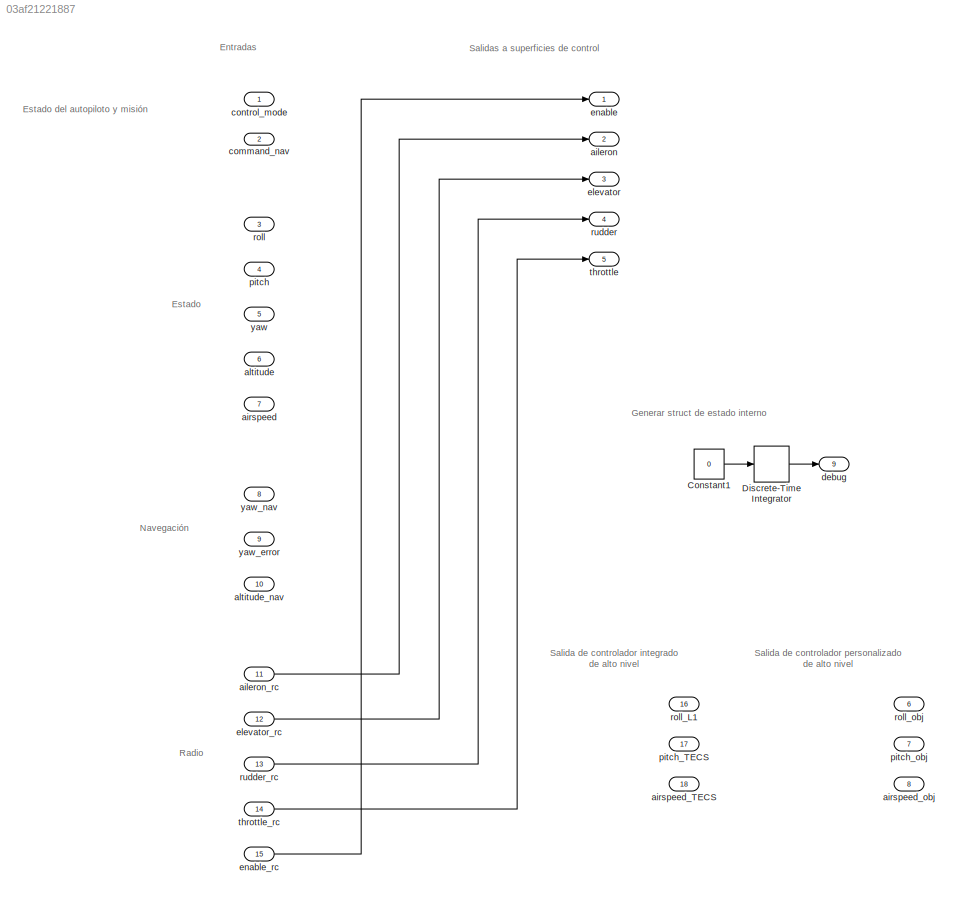
MODEL slx_03af21221887
KIND model
CONFIG AbsTol = auto
CONFIG EnableMultiTasking = off
CONFIG FixedStep = 1/100
CONFIG MaxStep = auto
CONFIG MinStep = auto
CONFIG RelTol = 1e-3
CONFIG SampleTimeConstraint = Unconstrained
CONFIG SolverName = FixedStepDiscrete
CONFIG StartTime = 0.0
CONFIG StopTime = inf
BLOCK [Constant] Constant1
  OutDataTypeStr = single
  Value = 0
BLOCK [DiscreteIntegrator] Discrete-Time Integrator
  ICPrevOutput = DiscIntNeverNeededParam
  ICPrevScaledInput = DiscIntNeverNeededParam
  InitialConditionSetting = Auto
  SampleTime = -1
BLOCK [Outport] aileron
  Port = 2
BLOCK [Inport] aileron_rc
  Port = 11
BLOCK [Inport] airspeed
  OutDataTypeStr = single
  Port = 7
BLOCK [Inport] airspeed_TECS
  Port = 18
BLOCK [Outport] airspeed_obj
  OutDataTypeStr = single
  Port = 8
BLOCK [Inport] altitude
  Port = 6
BLOCK [Inport] altitude_nav
  Port = 10
BLOCK [Inport] command_nav
  Port = 2
BLOCK [Inport] control_mode
  OutDataTypeStr = single
BLOCK [Outport] debug
  Port = 9
BLOCK [Outport] elevator
  Port = 3
BLOCK [Inport] elevator_rc
  Port = 12
BLOCK [Outport] enable
  OutDataTypeStr = boolean
BLOCK [Inport] enable_rc
  OutDataTypeStr = boolean
  Port = 15
BLOCK [Inport] pitch
  Port = 4
BLOCK [Inport] pitch_TECS
  Port = 17
BLOCK [Outport] pitch_obj
  Port = 7
BLOCK [Inport] roll
  Port = 3
BLOCK [Inport] roll_L1
  Port = 16
BLOCK [Outport] roll_obj
  Port = 6
BLOCK [Outport] rudder
  Port = 4
BLOCK [Inport] rudder_rc
  Port = 13
BLOCK [Outport] throttle
  OutDataTypeStr = single
  Port = 5
BLOCK [Inport] throttle_rc
  OutDataTypeStr = single
  Port = 14
BLOCK [Inport] yaw
  Port = 5
BLOCK [Inport] yaw_error
  Port = 9
BLOCK [Inport] yaw_nav
  Port = 8
ANNOTATION (root): Salidas a superficies de control
ANNOTATION (root): Salida de controlador integrado de alto nivel
ANNOTATION (root): Salida de controlador personalizado de alto nivel
ANNOTATION (root): Entradas
ANNOTATION (root): Estado
ANNOTATION (root): Estado del autopiloto y misión
ANNOTATION (root): Generar struct de estado interno
ANNOTATION (root): Navegación
ANNOTATION (root): Radio
LINE Constant1:1 -> Discrete-Time Integrator:1
LINE Discrete-Time Integrator:1 -> debug:1
LINE aileron_rc:1 -> aileron:1
LINE elevator_rc:1 -> elevator:1
LINE enable_rc:1 -> enable:1
LINE rudder_rc:1 -> rudder:1
LINE throttle_rc:1 -> throttle:1
